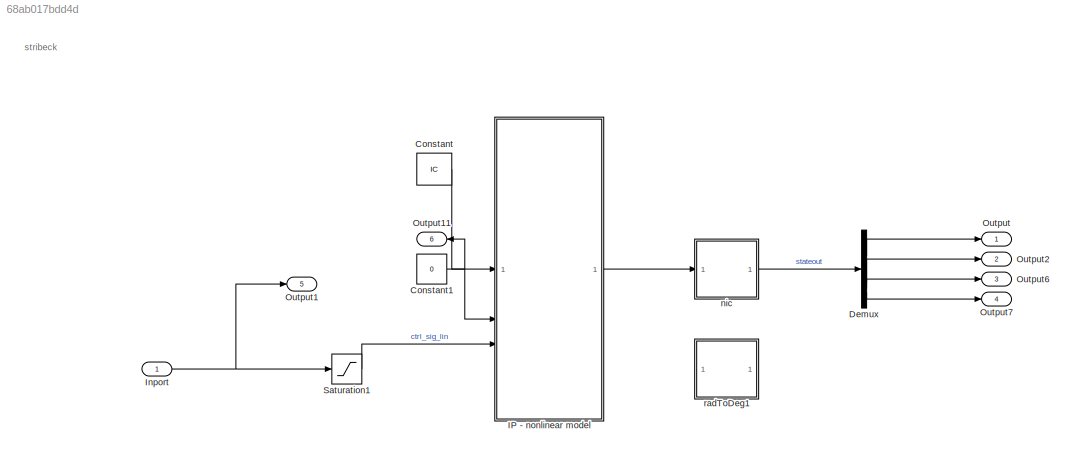
MODEL slx_68ab017bdd4d
KIND model
CONFIG AbsTol = auto
CONFIG EnableMultiTasking = off
CONFIG FixedStep = dt
CONFIG MaxStep = 0.001
CONFIG MinStep = auto
CONFIG RelTol = 1e-3
CONFIG SampleTimeConstraint = Unconstrained
CONFIG SolverName = ode45
CONFIG StartTime = 0.0
CONFIG StopTime = end_time
BLOCK [Constant] Constant
  Value = IC
  VectorParams1D = off
BLOCK [Constant] Constant1
  Value = 0
BLOCK [Demux] Demux
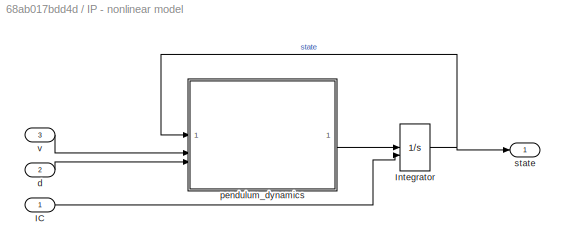
BLOCK [SubSystem] IP - nonlinear model 
  Description = Nonlinear model of inverted pendulum
BLOCK [Inport] IP - nonlinear model /IC
BLOCK [Integrator] IP - nonlinear model /Integrator
  InitialConditionSource = external
BLOCK [Inport] IP - nonlinear model /d
  Port = 2
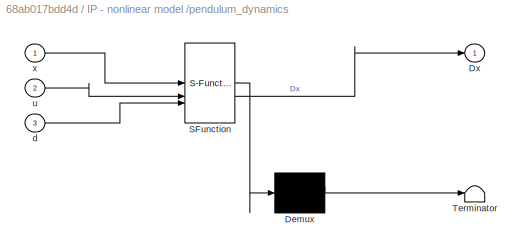
BLOCK [SubSystem] IP - nonlinear model /pendulum_dynamics
  ErrorFcn = Stateflow.Translate.translate
  PermitHierarchicalResolution = ExplicitOnly
  SFBlockType = MATLAB Function
  TreatAsAtomicUnit = on
BLOCK [Demux] IP - nonlinear model /pendulum_dynamics/ Demux 
  Outputs = 1
BLOCK [S-Function] IP - nonlinear model /pendulum_dynamics/ SFunction 
  EnableBusSupport = on
  FunctionName = sf_sfun
  Parameters = params_stribeck
  PortCounts = [3 2]
  SFcnIsStateOwnerBlock = off
  SFunctionDeploymentMode = off
  Tag = Stateflow S-Function 1
BLOCK [Terminator] IP - nonlinear model /pendulum_dynamics/ Terminator 
BLOCK [Outport] IP - nonlinear model /pendulum_dynamics/Dx
BLOCK [Inport] IP - nonlinear model /pendulum_dynamics/d
  Port = 3
BLOCK [Inport] IP - nonlinear model /pendulum_dynamics/u
  Port = 2
BLOCK [Inport] IP - nonlinear model /pendulum_dynamics/x
BLOCK [Outport] IP - nonlinear model /state
BLOCK [Inport] IP - nonlinear model /v
  Port = 3
BLOCK [Inport] Inport
BLOCK [Outport] Output
  SignalName = xw_nl
BLOCK [Outport] Output1
  Port = 5
  SignalName = volt_s
BLOCK [Outport] Output11
  NameLocation = top
  Port = 6
  SignalName = dist
BLOCK [Outport] Output2
  Port = 2
  SignalName = the_nl
BLOCK [Outport] Output6
  Port = 3
  SignalName = Dxw_nl
BLOCK [Outport] Output7
  Port = 4
  SignalName = Dthe_nl
BLOCK [Saturate] Saturation1
  LowerLimit = -12
  UpperLimit = 12
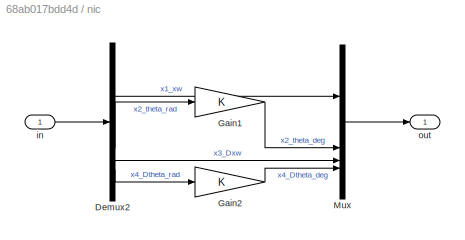
BLOCK [SubSystem] nic
BLOCK [Demux] nic/Demux2
BLOCK [Gain] nic/Gain1
BLOCK [Gain] nic/Gain2
BLOCK [Mux] nic/Mux
  DisplayOption = bar
BLOCK [Inport] nic/in
BLOCK [Outport] nic/out
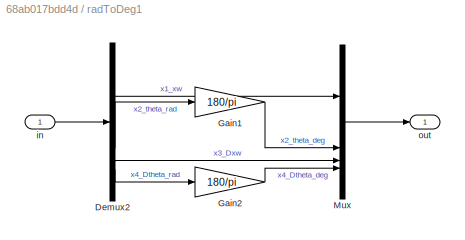
BLOCK [SubSystem] radToDeg1
  Commented = on
BLOCK [Demux] radToDeg1/Demux2
BLOCK [Gain] radToDeg1/Gain1
  Gain = 180/pi
BLOCK [Gain] radToDeg1/Gain2
  Gain = 180/pi
BLOCK [Mux] radToDeg1/Mux
  DisplayOption = bar
BLOCK [Inport] radToDeg1/in
BLOCK [Outport] radToDeg1/out
ANNOTATION (root): stribeck
NET Constant1:1 -> IP - nonlinear model :2, Output11:1
LINE Constant:1 -> IP - nonlinear model :1
LINE Demux:1 -> Output:1
LINE Demux:2 -> Output2:1
LINE Demux:3 -> Output6:1
LINE Demux:4 -> Output7:1
LINE IP - nonlinear model /IC:1 -> IP - nonlinear model /Integrator:2
NET IP - nonlinear model /Integrator:1 -> IP - nonlinear model /pendulum_dynamics:1, IP - nonlinear model /state:1
LINE IP - nonlinear model /d:1 -> IP - nonlinear model /pendulum_dynamics:3
LINE IP - nonlinear model /pendulum_dynamics:1 -> IP - nonlinear model /Integrator:1
LINE IP - nonlinear model /v:1 -> IP - nonlinear model /pendulum_dynamics:2
LINE IP - nonlinear model :1 -> nic:1
NET Inport:1 -> Output1:1, Saturation1:1
LINE Saturation1:1 -> IP - nonlinear model :3
LINE nic/Demux2:1 -> nic/Mux:1
LINE nic/Demux2:2 -> nic/Gain1:1
LINE nic/Demux2:3 -> nic/Mux:3
LINE nic/Demux2:4 -> nic/Gain2:1
LINE nic/Gain1:1 -> nic/Mux:2
LINE nic/Gain2:1 -> nic/Mux:4
LINE nic/Mux:1 -> nic/out:1
LINE nic/in:1 -> nic/Demux2:1
LINE nic:1 -> Demux:1
LINE radToDeg1/Demux2:1 -> radToDeg1/Mux:1
LINE radToDeg1/Demux2:2 -> radToDeg1/Gain1:1
LINE radToDeg1/Demux2:3 -> radToDeg1/Mux:3
LINE radToDeg1/Demux2:4 -> radToDeg1/Gain2:1
LINE radToDeg1/Gain1:1 -> radToDeg1/Mux:2
LINE radToDeg1/Gain2:1 -> radToDeg1/Mux:4
LINE radToDeg1/Mux:1 -> radToDeg1/out:1
LINE radToDeg1/in:1 -> radToDeg1/Demux2:1
note: NET lines group one-source signal fan-out (src -> all destinations, sorted); 1:1 wires keep LINE
CHART IP - nonlinear model /pendulum_dynamics states=1 transitions=1
  STATE_LABEL 'eML_blk_kernel()'
  STATE_LABEL 'SCRIPT:\nfunction Dx = dynamika_wahadla(x, u, d, params_stribeck)\n% x : stan\n% u : input - napięcie\n%\n% params scope: "parameters"\n% State, function input: x = [x Dx theta Dtheta]\'\n    % x1 = x(1);\n    x2 = x(2);\n    x3 = x(3);\n    x4 = x(4);\n    params_stribeck = num2cell(params_stribeck);\n    [M, mp, mc, Lp, alpha_dcm, B, gamma_stri, miu_c, miu_s, vs] = params_stribeck{:};\n    g               = 9...<+742ch>'
CHART  states=0 transitions=0
